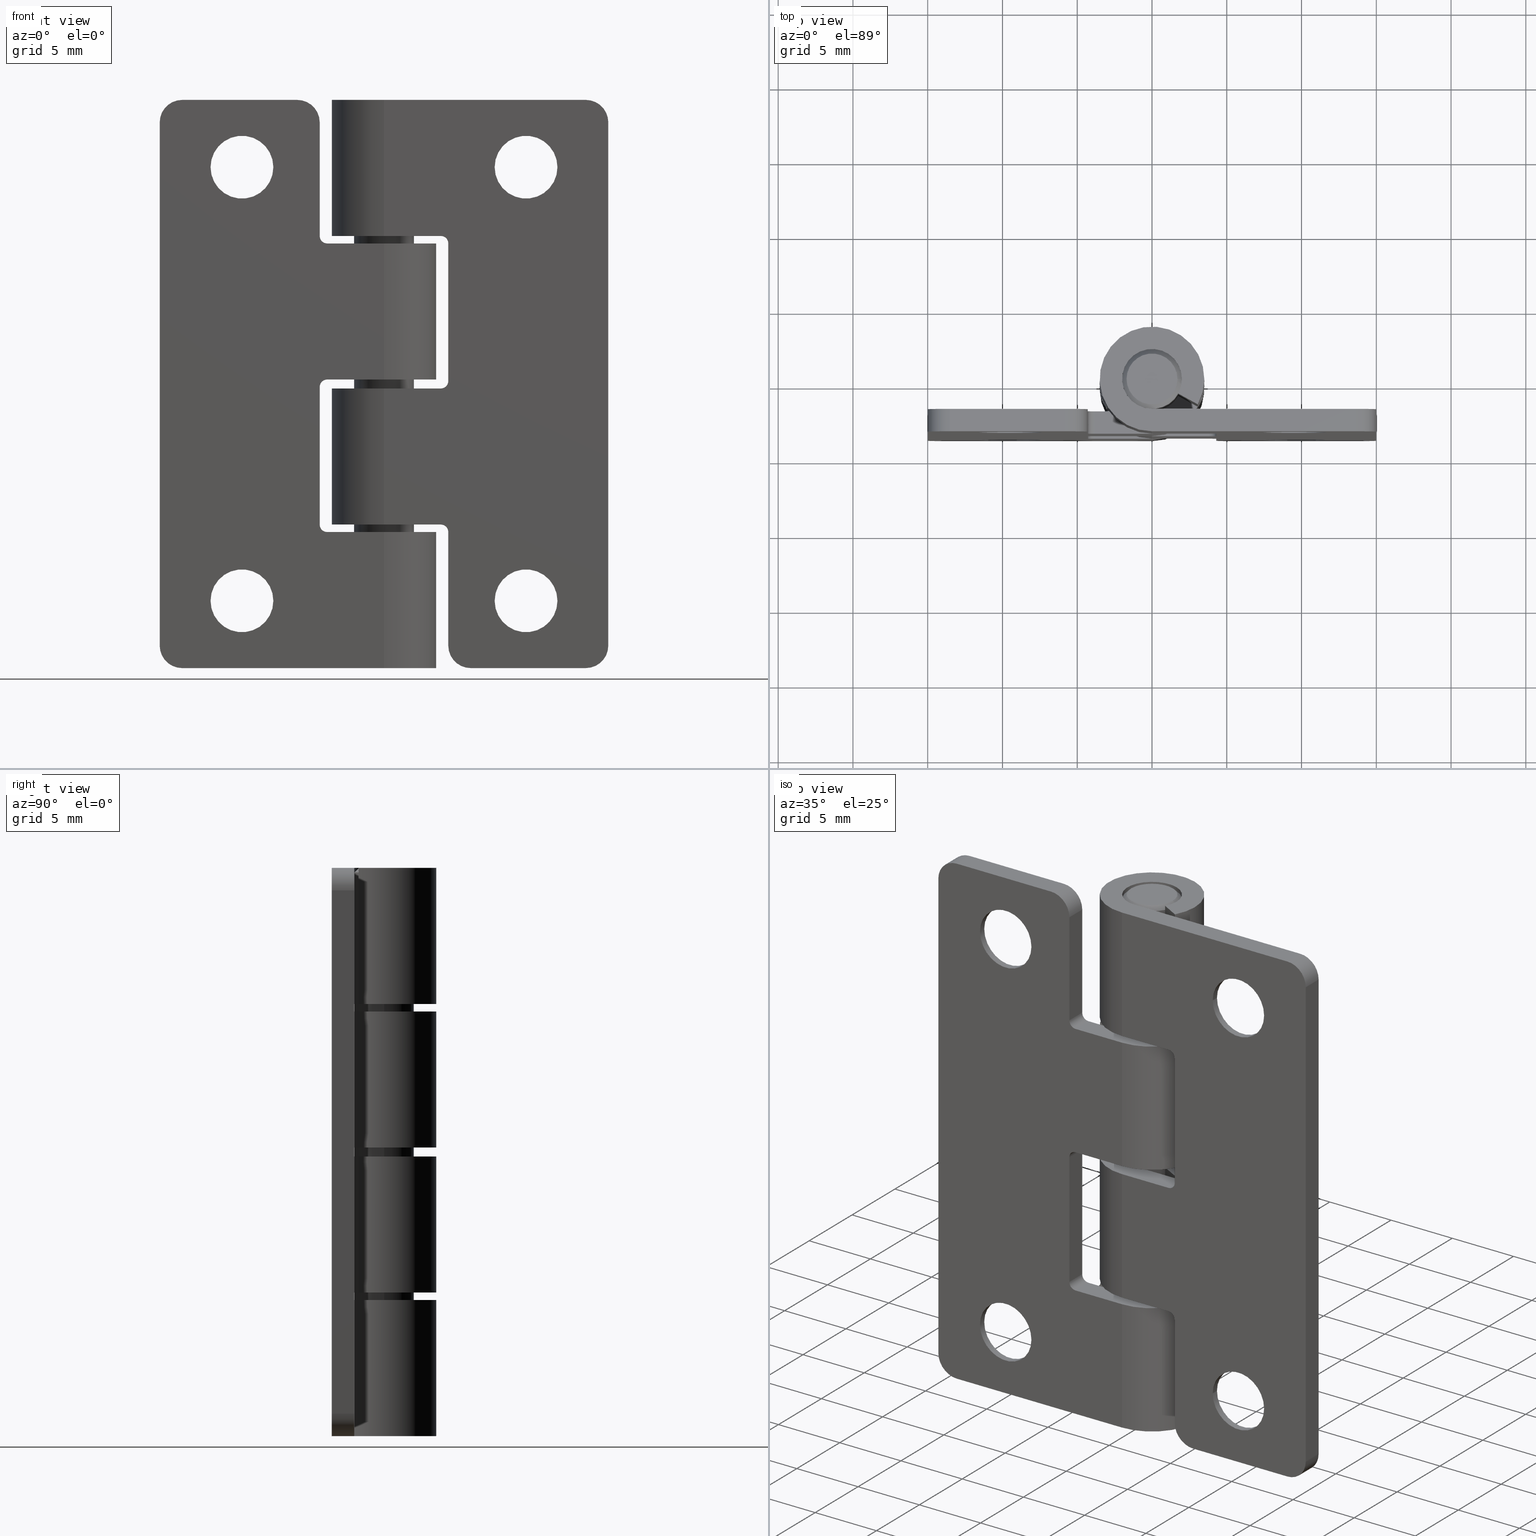
[diagram: canonical four-view strip — front | top / right | iso, engineering-drawing reading convention]
A machine part, canonical four-view strip (front | top / right | iso — engineering-drawing reading convention). The complete STEP part file that produces these views, byte-faithful:
ISO-10303-21;
HEADER;
/* Generated by software containing ST-Developer
 * from STEP Tools, Inc. (www.steptools.com) 
 */

FILE_DESCRIPTION(
/* description */ (''),
/* implementation_level */ '2;1');

FILE_NAME(
/* name */ '\\\\SYNOLOGYNAS\\web\\db2\\H-TC3830-15\\\X2\B3C4BA74\X0\\\
H-TC3830-15.stp',
/* time_stamp */ '2023-02-22T14:49:19+09:00',
/* author */ ('user'),
/* organization */ (''),
/* preprocessor_version */ 'ST-DEVELOPER v15.6',
/* originating_system */ 'Autodesk Inventor 2015',
/* authorisation */ '');

FILE_SCHEMA (('AUTOMOTIVE_DESIGN { 1 0 10303 214 3 1 1 }'));
ENDSEC;

DATA;
#10=MECHANICAL_DESIGN_GEOMETRIC_PRESENTATION_REPRESENTATION('',(#33,#34),
#960);
#11=(
CONVERSION_BASED_UNIT('degree',#12)
NAMED_UNIT(#26)
PLANE_ANGLE_UNIT()
);
#12=PLANE_ANGLE_MEASURE_WITH_UNIT(PLANE_ANGLE_MEASURE(0.01745329252),#963);
#13=ITEM_DEFINED_TRANSFORMATION($,$,#555,#619);
#14=ITEM_DEFINED_TRANSFORMATION($,$,#555,#620);
#15=ITEM_DEFINED_TRANSFORMATION($,$,#608,#621);
#16=(
REPRESENTATION_RELATIONSHIP($,$,#973,#975)
REPRESENTATION_RELATIONSHIP_WITH_TRANSFORMATION(#13)
SHAPE_REPRESENTATION_RELATIONSHIP()
);
#17=(
REPRESENTATION_RELATIONSHIP($,$,#973,#975)
REPRESENTATION_RELATIONSHIP_WITH_TRANSFORMATION(#14)
SHAPE_REPRESENTATION_RELATIONSHIP()
);
#18=(
REPRESENTATION_RELATIONSHIP($,$,#974,#975)
REPRESENTATION_RELATIONSHIP_WITH_TRANSFORMATION(#15)
SHAPE_REPRESENTATION_RELATIONSHIP()
);
#19=CONTEXT_DEPENDENT_SHAPE_REPRESENTATION(#16,#970);
#20=CONTEXT_DEPENDENT_SHAPE_REPRESENTATION(#17,#971);
#21=CONTEXT_DEPENDENT_SHAPE_REPRESENTATION(#18,#972);
#22=NEXT_ASSEMBLY_USAGE_OCCURRENCE('38_\X2\B0A0AC1C\X0\:1',$,$,#979,#977,
$);
#23=NEXT_ASSEMBLY_USAGE_OCCURRENCE('38_\X2\B0A0AC1C\X0\:2',$,$,#979,#977,
$);
#24=NEXT_ASSEMBLY_USAGE_OCCURRENCE('38_\X2\D540\X0\:1',$,$,#979,#978,$);
#25=DIMENSIONAL_EXPONENTS(1.,0.,0.,0.,0.,0.,0.);
#26=DIMENSIONAL_EXPONENTS(0.,0.,0.,0.,0.,0.,0.);
#27=(
CONVERSION_BASED_UNIT('__CONSTANT UNIT inch',#28)
LENGTH_UNIT()
NAMED_UNIT(#25)
);
#28=LENGTH_MEASURE_WITH_UNIT(LENGTH_MEASURE(25.4),#961);
#29=SHAPE_REPRESENTATION_RELATIONSHIP('SRR','None',#973,#31);
#30=SHAPE_REPRESENTATION_RELATIONSHIP('SRR','None',#974,#32);
#31=ADVANCED_BREP_SHAPE_REPRESENTATION($,(#35),#957);
#32=ADVANCED_BREP_SHAPE_REPRESENTATION($,(#36),#958);
#33=STYLED_ITEM('',(#992),#35);
#34=STYLED_ITEM('',(#993),#36);
#35=MANIFOLD_SOLID_BREP('\X2\C194B9ACB4DC\X0\2',#553);
#36=MANIFOLD_SOLID_BREP('\X2\C194B9ACB4DC\X0\3',#554);
#37=CONICAL_SURFACE('',#597,2.6,0.785398163397448);
#38=CONICAL_SURFACE('',#601,2.6,0.785398163397448);
#39=CONICAL_SURFACE('',#609,1.85,0.785398163397448);
#40=CONICAL_SURFACE('',#615,1.85,0.785398163397448);
#41=FACE_BOUND('',#106,.T.);
#42=FACE_BOUND('',#107,.T.);
#43=FACE_BOUND('',#119,.T.);
#44=FACE_BOUND('',#121,.T.);
#45=FACE_BOUND('',#123,.T.);
#46=FACE_BOUND('',#125,.T.);
#47=FACE_BOUND('',#127,.T.);
#48=FACE_BOUND('',#128,.T.);
#49=FACE_BOUND('',#132,.T.);
#50=FACE_BOUND('',#134,.T.);
#51=FACE_BOUND('',#137,.T.);
#52=PLANE('',#559);
#53=PLANE('',#563);
#54=PLANE('',#569);
#55=PLANE('',#575);
#56=PLANE('',#576);
#57=PLANE('',#583);
#58=PLANE('',#586);
#59=PLANE('',#587);
#60=PLANE('',#592);
#61=PLANE('',#593);
#62=PLANE('',#605);
#63=PLANE('',#607);
#64=PLANE('',#614);
#65=PLANE('',#617);
#66=FACE_OUTER_BOUND('',#97,.T.);
#67=FACE_OUTER_BOUND('',#98,.T.);
#68=FACE_OUTER_BOUND('',#99,.T.);
#69=FACE_OUTER_BOUND('',#100,.T.);
#70=FACE_OUTER_BOUND('',#101,.T.);
#71=FACE_OUTER_BOUND('',#102,.T.);
#72=FACE_OUTER_BOUND('',#103,.T.);
#73=FACE_OUTER_BOUND('',#104,.T.);
#74=FACE_OUTER_BOUND('',#105,.T.);
#75=FACE_OUTER_BOUND('',#108,.T.);
#76=FACE_OUTER_BOUND('',#109,.T.);
#77=FACE_OUTER_BOUND('',#110,.T.);
#78=FACE_OUTER_BOUND('',#111,.T.);
#79=FACE_OUTER_BOUND('',#112,.T.);
#80=FACE_OUTER_BOUND('',#113,.T.);
#81=FACE_OUTER_BOUND('',#114,.T.);
#82=FACE_OUTER_BOUND('',#115,.T.);
#83=FACE_OUTER_BOUND('',#116,.T.);
#84=FACE_OUTER_BOUND('',#117,.T.);
#85=FACE_OUTER_BOUND('',#118,.T.);
#86=FACE_OUTER_BOUND('',#120,.T.);
#87=FACE_OUTER_BOUND('',#122,.T.);
#88=FACE_OUTER_BOUND('',#124,.T.);
#89=FACE_OUTER_BOUND('',#126,.T.);
#90=FACE_OUTER_BOUND('',#129,.T.);
#91=FACE_OUTER_BOUND('',#130,.T.);
#92=FACE_OUTER_BOUND('',#131,.T.);
#93=FACE_OUTER_BOUND('',#133,.T.);
#94=FACE_OUTER_BOUND('',#135,.T.);
#95=FACE_OUTER_BOUND('',#136,.T.);
#96=FACE_OUTER_BOUND('',#138,.T.);
#97=EDGE_LOOP('',(#369,#370,#371,#372));
#98=EDGE_LOOP('',(#373,#374,#375,#376));
#99=EDGE_LOOP('',(#377,#378,#379,#380));
#100=EDGE_LOOP('',(#381,#382,#383,#384,#385,#386));
#101=EDGE_LOOP('',(#387,#388,#389,#390));
#102=EDGE_LOOP('',(#391,#392,#393,#394,#395,#396));
#103=EDGE_LOOP('',(#397,#398,#399,#400));
#104=EDGE_LOOP('',(#401,#402,#403,#404));
#105=EDGE_LOOP('',(#405,#406,#407,#408,#409,#410,#411,#412,#413,#414,#415,
#416,#417,#418,#419,#420));
#106=EDGE_LOOP('',(#421));
#107=EDGE_LOOP('',(#422));
#108=EDGE_LOOP('',(#423,#424,#425,#426));
#109=EDGE_LOOP('',(#427,#428,#429,#430));
#110=EDGE_LOOP('',(#431,#432,#433,#434));
#111=EDGE_LOOP('',(#435,#436,#437,#438));
#112=EDGE_LOOP('',(#439,#440,#441,#442,#443,#444));
#113=EDGE_LOOP('',(#445,#446,#447,#448));
#114=EDGE_LOOP('',(#449,#450,#451,#452));
#115=EDGE_LOOP('',(#453,#454,#455,#456));
#116=EDGE_LOOP('',(#457,#458,#459,#460));
#117=EDGE_LOOP('',(#461,#462,#463,#464));
#118=EDGE_LOOP('',(#465));
#119=EDGE_LOOP('',(#466));
#120=EDGE_LOOP('',(#467));
#121=EDGE_LOOP('',(#468));
#122=EDGE_LOOP('',(#469));
#123=EDGE_LOOP('',(#470));
#124=EDGE_LOOP('',(#471));
#125=EDGE_LOOP('',(#472));
#126=EDGE_LOOP('',(#473,#474,#475,#476,#477,#478,#479,#480,#481,#482,#483,
#484,#485,#486,#487,#488));
#127=EDGE_LOOP('',(#489));
#128=EDGE_LOOP('',(#490));
#129=EDGE_LOOP('',(#491,#492,#493,#494));
#130=EDGE_LOOP('',(#495,#496,#497,#498,#499,#500));
#131=EDGE_LOOP('',(#501));
#132=EDGE_LOOP('',(#502));
#133=EDGE_LOOP('',(#503));
#134=EDGE_LOOP('',(#504));
#135=EDGE_LOOP('',(#505));
#136=EDGE_LOOP('',(#506));
#137=EDGE_LOOP('',(#507));
#138=EDGE_LOOP('',(#508));
#139=LINE('',#802,#179);
#140=LINE('',#805,#180);
#141=LINE('',#808,#181);
#142=LINE('',#810,#182);
#143=LINE('',#811,#183);
#144=LINE('',#817,#184);
#145=LINE('',#820,#185);
#146=LINE('',#823,#186);
#147=LINE('',#827,#187);
#148=LINE('',#830,#188);
#149=LINE('',#836,#189);
#150=LINE('',#839,#190);
#151=LINE('',#842,#191);
#152=LINE('',#846,#192);
#153=LINE('',#849,#193);
#154=LINE('',#854,#194);
#155=LINE('',#858,#195);
#156=LINE('',#860,#196);
#157=LINE('',#861,#197);
#158=LINE('',#864,#198);
#159=LINE('',#865,#199);
#160=LINE('',#866,#200);
#161=LINE('',#868,#201);
#162=LINE('',#870,#202);
#163=LINE('',#874,#203);
#164=LINE('',#882,#204);
#165=LINE('',#885,#205);
#166=LINE('',#888,#206);
#167=LINE('',#889,#207);
#168=LINE('',#893,#208);
#169=LINE('',#896,#209);
#170=LINE('',#900,#210);
#171=LINE('',#904,#211);
#172=LINE('',#907,#212);
#173=LINE('',#910,#213);
#174=LINE('',#911,#214);
#175=LINE('',#913,#215);
#176=LINE('',#914,#216);
#177=LINE('',#931,#217);
#178=LINE('',#932,#218);
#179=VECTOR('',#628,1.5);
#180=VECTOR('',#631,1.5);
#181=VECTOR('',#634,7.6);
#182=VECTOR('',#635,1.5);
#183=VECTOR('',#636,7.6);
#184=VECTOR('',#641,1.5);
#185=VECTOR('',#644,1.5);
#186=VECTOR('',#647,3.8);
#187=VECTOR('',#650,1.5);
#188=VECTOR('',#653,3.8);
#189=VECTOR('',#658,1.5);
#190=VECTOR('',#661,1.5);
#191=VECTOR('',#664,3.8);
#192=VECTOR('',#667,1.5);
#193=VECTOR('',#670,3.8);
#194=VECTOR('',#675,1.5);
#195=VECTOR('',#680,7.69999999999999);
#196=VECTOR('',#681,1.5);
#197=VECTOR('',#682,7.69999999999999);
#198=VECTOR('',#685,3.8);
#199=VECTOR('',#686,9.1);
#200=VECTOR('',#687,9.2);
#201=VECTOR('',#688,9.1);
#202=VECTOR('',#689,13.5);
#203=VECTOR('',#692,35.);
#204=VECTOR('',#701,1.5);
#205=VECTOR('',#704,1.5);
#206=VECTOR('',#707,35.);
#207=VECTOR('',#708,1.5);
#208=VECTOR('',#715,9.2);
#209=VECTOR('',#718,3.80000000000001);
#210=VECTOR('',#721,1.5);
#211=VECTOR('',#726,9.1);
#212=VECTOR('',#729,9.1);
#213=VECTOR('',#732,1.5);
#214=VECTOR('',#733,9.1);
#215=VECTOR('',#736,9.1);
#216=VECTOR('',#737,9.1);
#217=VECTOR('',#762,13.5);
#218=VECTOR('',#763,9.1);
#219=CIRCLE('',#557,0.5);
#220=CIRCLE('',#558,0.5);
#221=CIRCLE('',#561,0.5);
#222=CIRCLE('',#562,0.5);
#223=CIRCLE('',#564,3.5);
#224=CIRCLE('',#565,2.);
#225=CIRCLE('',#567,0.5);
#226=CIRCLE('',#568,0.5);
#227=CIRCLE('',#570,2.);
#228=CIRCLE('',#571,3.5);
#229=CIRCLE('',#573,1.5);
#230=CIRCLE('',#574,1.5);
#231=CIRCLE('',#577,1.5);
#232=CIRCLE('',#578,1.5);
#233=CIRCLE('',#579,3.1);
#234=CIRCLE('',#580,3.1);
#235=CIRCLE('',#582,1.5);
#236=CIRCLE('',#585,1.5);
#237=CIRCLE('',#588,3.5);
#238=CIRCLE('',#589,2.);
#239=CIRCLE('',#591,3.5);
#240=CIRCLE('',#595,2.);
#241=CIRCLE('',#598,2.1);
#242=CIRCLE('',#600,2.1);
#243=CIRCLE('',#602,2.1);
#244=CIRCLE('',#604,2.1);
#245=CIRCLE('',#610,2.);
#246=CIRCLE('',#611,1.7);
#247=CIRCLE('',#613,2.);
#248=CIRCLE('',#616,1.7);
#249=VERTEX_POINT('',#798);
#250=VERTEX_POINT('',#799);
#251=VERTEX_POINT('',#801);
#252=VERTEX_POINT('',#803);
#253=VERTEX_POINT('',#807);
#254=VERTEX_POINT('',#809);
#255=VERTEX_POINT('',#813);
#256=VERTEX_POINT('',#814);
#257=VERTEX_POINT('',#816);
#258=VERTEX_POINT('',#818);
#259=VERTEX_POINT('',#822);
#260=VERTEX_POINT('',#824);
#261=VERTEX_POINT('',#826);
#262=VERTEX_POINT('',#828);
#263=VERTEX_POINT('',#832);
#264=VERTEX_POINT('',#833);
#265=VERTEX_POINT('',#835);
#266=VERTEX_POINT('',#837);
#267=VERTEX_POINT('',#841);
#268=VERTEX_POINT('',#843);
#269=VERTEX_POINT('',#845);
#270=VERTEX_POINT('',#847);
#271=VERTEX_POINT('',#851);
#272=VERTEX_POINT('',#853);
#273=VERTEX_POINT('',#857);
#274=VERTEX_POINT('',#859);
#275=VERTEX_POINT('',#863);
#276=VERTEX_POINT('',#867);
#277=VERTEX_POINT('',#869);
#278=VERTEX_POINT('',#871);
#279=VERTEX_POINT('',#873);
#280=VERTEX_POINT('',#876);
#281=VERTEX_POINT('',#878);
#282=VERTEX_POINT('',#881);
#283=VERTEX_POINT('',#883);
#284=VERTEX_POINT('',#887);
#285=VERTEX_POINT('',#895);
#286=VERTEX_POINT('',#897);
#287=VERTEX_POINT('',#899);
#288=VERTEX_POINT('',#903);
#289=VERTEX_POINT('',#905);
#290=VERTEX_POINT('',#909);
#291=VERTEX_POINT('',#919);
#292=VERTEX_POINT('',#922);
#293=VERTEX_POINT('',#925);
#294=VERTEX_POINT('',#928);
#295=VERTEX_POINT('',#937);
#296=VERTEX_POINT('',#939);
#297=VERTEX_POINT('',#942);
#298=VERTEX_POINT('',#946);
#299=EDGE_CURVE('',#249,#250,#219,.T.);
#300=EDGE_CURVE('',#250,#251,#139,.T.);
#301=EDGE_CURVE('',#251,#252,#220,.T.);
#302=EDGE_CURVE('',#252,#249,#140,.T.);
#303=EDGE_CURVE('',#253,#250,#141,.T.);
#304=EDGE_CURVE('',#254,#253,#142,.T.);
#305=EDGE_CURVE('',#251,#254,#143,.T.);
#306=EDGE_CURVE('',#255,#256,#221,.T.);
#307=EDGE_CURVE('',#256,#257,#144,.T.);
#308=EDGE_CURVE('',#257,#258,#222,.T.);
#309=EDGE_CURVE('',#258,#255,#145,.T.);
#310=EDGE_CURVE('',#259,#256,#146,.T.);
#311=EDGE_CURVE('',#260,#259,#223,.T.);
#312=EDGE_CURVE('',#261,#260,#147,.T.);
#313=EDGE_CURVE('',#262,#261,#224,.T.);
#314=EDGE_CURVE('',#257,#262,#148,.T.);
#315=EDGE_CURVE('',#263,#264,#225,.T.);
#316=EDGE_CURVE('',#264,#265,#149,.T.);
#317=EDGE_CURVE('',#265,#266,#226,.T.);
#318=EDGE_CURVE('',#266,#263,#150,.T.);
#319=EDGE_CURVE('',#267,#264,#151,.T.);
#320=EDGE_CURVE('',#268,#267,#227,.T.);
#321=EDGE_CURVE('',#269,#268,#152,.T.);
#322=EDGE_CURVE('',#270,#269,#228,.T.);
#323=EDGE_CURVE('',#265,#270,#153,.T.);
#324=EDGE_CURVE('',#253,#271,#229,.T.);
#325=EDGE_CURVE('',#271,#272,#154,.T.);
#326=EDGE_CURVE('',#272,#254,#230,.T.);
#327=EDGE_CURVE('',#271,#273,#155,.T.);
#328=EDGE_CURVE('',#274,#273,#156,.T.);
#329=EDGE_CURVE('',#274,#272,#157,.T.);
#330=EDGE_CURVE('',#249,#275,#158,.T.);
#331=EDGE_CURVE('',#275,#267,#159,.T.);
#332=EDGE_CURVE('',#263,#258,#160,.T.);
#333=EDGE_CURVE('',#262,#276,#161,.T.);
#334=EDGE_CURVE('',#277,#276,#162,.T.);
#335=EDGE_CURVE('',#278,#277,#231,.T.);
#336=EDGE_CURVE('',#279,#278,#163,.T.);
#337=EDGE_CURVE('',#273,#279,#232,.T.);
#338=EDGE_CURVE('',#280,#280,#233,.T.);
#339=EDGE_CURVE('',#281,#281,#234,.T.);
#340=EDGE_CURVE('',#277,#282,#164,.T.);
#341=EDGE_CURVE('',#282,#283,#235,.T.);
#342=EDGE_CURVE('',#283,#278,#165,.T.);
#343=EDGE_CURVE('',#284,#283,#166,.T.);
#344=EDGE_CURVE('',#279,#284,#167,.T.);
#345=EDGE_CURVE('',#284,#274,#236,.T.);
#346=EDGE_CURVE('',#255,#266,#168,.T.);
#347=EDGE_CURVE('',#285,#252,#169,.T.);
#348=EDGE_CURVE('',#286,#285,#237,.T.);
#349=EDGE_CURVE('',#287,#286,#170,.T.);
#350=EDGE_CURVE('',#275,#287,#238,.T.);
#351=EDGE_CURVE('',#259,#288,#171,.T.);
#352=EDGE_CURVE('',#289,#288,#239,.T.);
#353=EDGE_CURVE('',#289,#260,#172,.T.);
#354=EDGE_CURVE('',#290,#289,#173,.T.);
#355=EDGE_CURVE('',#261,#290,#174,.T.);
#356=EDGE_CURVE('',#287,#268,#175,.T.);
#357=EDGE_CURVE('',#269,#286,#176,.T.);
#358=EDGE_CURVE('',#276,#290,#240,.T.);
#359=EDGE_CURVE('',#291,#291,#241,.T.);
#360=EDGE_CURVE('',#292,#292,#242,.T.);
#361=EDGE_CURVE('',#293,#293,#243,.T.);
#362=EDGE_CURVE('',#294,#294,#244,.T.);
#363=EDGE_CURVE('',#288,#282,#177,.T.);
#364=EDGE_CURVE('',#285,#270,#178,.T.);
#365=EDGE_CURVE('',#295,#295,#245,.T.);
#366=EDGE_CURVE('',#296,#296,#246,.T.);
#367=EDGE_CURVE('',#297,#297,#247,.T.);
#368=EDGE_CURVE('',#298,#298,#248,.T.);
#369=ORIENTED_EDGE('',*,*,#299,.T.);
#370=ORIENTED_EDGE('',*,*,#300,.T.);
#371=ORIENTED_EDGE('',*,*,#301,.T.);
#372=ORIENTED_EDGE('',*,*,#302,.T.);
#373=ORIENTED_EDGE('',*,*,#300,.F.);
#374=ORIENTED_EDGE('',*,*,#303,.F.);
#375=ORIENTED_EDGE('',*,*,#304,.F.);
#376=ORIENTED_EDGE('',*,*,#305,.F.);
#377=ORIENTED_EDGE('',*,*,#306,.T.);
#378=ORIENTED_EDGE('',*,*,#307,.T.);
#379=ORIENTED_EDGE('',*,*,#308,.T.);
#380=ORIENTED_EDGE('',*,*,#309,.T.);
#381=ORIENTED_EDGE('',*,*,#307,.F.);
#382=ORIENTED_EDGE('',*,*,#310,.F.);
#383=ORIENTED_EDGE('',*,*,#311,.F.);
#384=ORIENTED_EDGE('',*,*,#312,.F.);
#385=ORIENTED_EDGE('',*,*,#313,.F.);
#386=ORIENTED_EDGE('',*,*,#314,.F.);
#387=ORIENTED_EDGE('',*,*,#315,.T.);
#388=ORIENTED_EDGE('',*,*,#316,.T.);
#389=ORIENTED_EDGE('',*,*,#317,.T.);
#390=ORIENTED_EDGE('',*,*,#318,.T.);
#391=ORIENTED_EDGE('',*,*,#316,.F.);
#392=ORIENTED_EDGE('',*,*,#319,.F.);
#393=ORIENTED_EDGE('',*,*,#320,.F.);
#394=ORIENTED_EDGE('',*,*,#321,.F.);
#395=ORIENTED_EDGE('',*,*,#322,.F.);
#396=ORIENTED_EDGE('',*,*,#323,.F.);
#397=ORIENTED_EDGE('',*,*,#324,.T.);
#398=ORIENTED_EDGE('',*,*,#325,.T.);
#399=ORIENTED_EDGE('',*,*,#326,.T.);
#400=ORIENTED_EDGE('',*,*,#304,.T.);
#401=ORIENTED_EDGE('',*,*,#325,.F.);
#402=ORIENTED_EDGE('',*,*,#327,.T.);
#403=ORIENTED_EDGE('',*,*,#328,.F.);
#404=ORIENTED_EDGE('',*,*,#329,.T.);
#405=ORIENTED_EDGE('',*,*,#324,.F.);
#406=ORIENTED_EDGE('',*,*,#303,.T.);
#407=ORIENTED_EDGE('',*,*,#299,.F.);
#408=ORIENTED_EDGE('',*,*,#330,.T.);
#409=ORIENTED_EDGE('',*,*,#331,.T.);
#410=ORIENTED_EDGE('',*,*,#319,.T.);
#411=ORIENTED_EDGE('',*,*,#315,.F.);
#412=ORIENTED_EDGE('',*,*,#332,.T.);
#413=ORIENTED_EDGE('',*,*,#308,.F.);
#414=ORIENTED_EDGE('',*,*,#314,.T.);
#415=ORIENTED_EDGE('',*,*,#333,.T.);
#416=ORIENTED_EDGE('',*,*,#334,.F.);
#417=ORIENTED_EDGE('',*,*,#335,.F.);
#418=ORIENTED_EDGE('',*,*,#336,.F.);
#419=ORIENTED_EDGE('',*,*,#337,.F.);
#420=ORIENTED_EDGE('',*,*,#327,.F.);
#421=ORIENTED_EDGE('',*,*,#338,.T.);
#422=ORIENTED_EDGE('',*,*,#339,.T.);
#423=ORIENTED_EDGE('',*,*,#335,.T.);
#424=ORIENTED_EDGE('',*,*,#340,.T.);
#425=ORIENTED_EDGE('',*,*,#341,.T.);
#426=ORIENTED_EDGE('',*,*,#342,.T.);
#427=ORIENTED_EDGE('',*,*,#342,.F.);
#428=ORIENTED_EDGE('',*,*,#343,.F.);
#429=ORIENTED_EDGE('',*,*,#344,.F.);
#430=ORIENTED_EDGE('',*,*,#336,.T.);
#431=ORIENTED_EDGE('',*,*,#345,.T.);
#432=ORIENTED_EDGE('',*,*,#328,.T.);
#433=ORIENTED_EDGE('',*,*,#337,.T.);
#434=ORIENTED_EDGE('',*,*,#344,.T.);
#435=ORIENTED_EDGE('',*,*,#309,.F.);
#436=ORIENTED_EDGE('',*,*,#332,.F.);
#437=ORIENTED_EDGE('',*,*,#318,.F.);
#438=ORIENTED_EDGE('',*,*,#346,.F.);
#439=ORIENTED_EDGE('',*,*,#302,.F.);
#440=ORIENTED_EDGE('',*,*,#347,.F.);
#441=ORIENTED_EDGE('',*,*,#348,.F.);
#442=ORIENTED_EDGE('',*,*,#349,.F.);
#443=ORIENTED_EDGE('',*,*,#350,.F.);
#444=ORIENTED_EDGE('',*,*,#330,.F.);
#445=ORIENTED_EDGE('',*,*,#311,.T.);
#446=ORIENTED_EDGE('',*,*,#351,.T.);
#447=ORIENTED_EDGE('',*,*,#352,.F.);
#448=ORIENTED_EDGE('',*,*,#353,.T.);
#449=ORIENTED_EDGE('',*,*,#312,.T.);
#450=ORIENTED_EDGE('',*,*,#353,.F.);
#451=ORIENTED_EDGE('',*,*,#354,.F.);
#452=ORIENTED_EDGE('',*,*,#355,.F.);
#453=ORIENTED_EDGE('',*,*,#321,.T.);
#454=ORIENTED_EDGE('',*,*,#356,.F.);
#455=ORIENTED_EDGE('',*,*,#349,.T.);
#456=ORIENTED_EDGE('',*,*,#357,.F.);
#457=ORIENTED_EDGE('',*,*,#313,.T.);
#458=ORIENTED_EDGE('',*,*,#355,.T.);
#459=ORIENTED_EDGE('',*,*,#358,.F.);
#460=ORIENTED_EDGE('',*,*,#333,.F.);
#461=ORIENTED_EDGE('',*,*,#320,.T.);
#462=ORIENTED_EDGE('',*,*,#331,.F.);
#463=ORIENTED_EDGE('',*,*,#350,.T.);
#464=ORIENTED_EDGE('',*,*,#356,.T.);
#465=ORIENTED_EDGE('',*,*,#359,.F.);
#466=ORIENTED_EDGE('',*,*,#338,.F.);
#467=ORIENTED_EDGE('',*,*,#360,.F.);
#468=ORIENTED_EDGE('',*,*,#359,.T.);
#469=ORIENTED_EDGE('',*,*,#361,.F.);
#470=ORIENTED_EDGE('',*,*,#339,.F.);
#471=ORIENTED_EDGE('',*,*,#362,.F.);
#472=ORIENTED_EDGE('',*,*,#361,.T.);
#473=ORIENTED_EDGE('',*,*,#326,.F.);
#474=ORIENTED_EDGE('',*,*,#329,.F.);
#475=ORIENTED_EDGE('',*,*,#345,.F.);
#476=ORIENTED_EDGE('',*,*,#343,.T.);
#477=ORIENTED_EDGE('',*,*,#341,.F.);
#478=ORIENTED_EDGE('',*,*,#363,.F.);
#479=ORIENTED_EDGE('',*,*,#351,.F.);
#480=ORIENTED_EDGE('',*,*,#310,.T.);
#481=ORIENTED_EDGE('',*,*,#306,.F.);
#482=ORIENTED_EDGE('',*,*,#346,.T.);
#483=ORIENTED_EDGE('',*,*,#317,.F.);
#484=ORIENTED_EDGE('',*,*,#323,.T.);
#485=ORIENTED_EDGE('',*,*,#364,.F.);
#486=ORIENTED_EDGE('',*,*,#347,.T.);
#487=ORIENTED_EDGE('',*,*,#301,.F.);
#488=ORIENTED_EDGE('',*,*,#305,.T.);
#489=ORIENTED_EDGE('',*,*,#360,.T.);
#490=ORIENTED_EDGE('',*,*,#362,.T.);
#491=ORIENTED_EDGE('',*,*,#322,.T.);
#492=ORIENTED_EDGE('',*,*,#357,.T.);
#493=ORIENTED_EDGE('',*,*,#348,.T.);
#494=ORIENTED_EDGE('',*,*,#364,.T.);
#495=ORIENTED_EDGE('',*,*,#340,.F.);
#496=ORIENTED_EDGE('',*,*,#334,.T.);
#497=ORIENTED_EDGE('',*,*,#358,.T.);
#498=ORIENTED_EDGE('',*,*,#354,.T.);
#499=ORIENTED_EDGE('',*,*,#352,.T.);
#500=ORIENTED_EDGE('',*,*,#363,.T.);
#501=ORIENTED_EDGE('',*,*,#365,.T.);
#502=ORIENTED_EDGE('',*,*,#366,.T.);
#503=ORIENTED_EDGE('',*,*,#365,.F.);
#504=ORIENTED_EDGE('',*,*,#367,.F.);
#505=ORIENTED_EDGE('',*,*,#366,.F.);
#506=ORIENTED_EDGE('',*,*,#367,.T.);
#507=ORIENTED_EDGE('',*,*,#368,.T.);
#508=ORIENTED_EDGE('',*,*,#368,.F.);
#509=CYLINDRICAL_SURFACE('',#556,0.5);
#510=CYLINDRICAL_SURFACE('',#560,0.5);
#511=CYLINDRICAL_SURFACE('',#566,0.5);
#512=CYLINDRICAL_SURFACE('',#572,1.5);
#513=CYLINDRICAL_SURFACE('',#581,1.5);
#514=CYLINDRICAL_SURFACE('',#584,1.5);
#515=CYLINDRICAL_SURFACE('',#590,3.5);
#516=CYLINDRICAL_SURFACE('',#594,2.);
#517=CYLINDRICAL_SURFACE('',#596,2.);
#518=CYLINDRICAL_SURFACE('',#599,2.1);
#519=CYLINDRICAL_SURFACE('',#603,2.1);
#520=CYLINDRICAL_SURFACE('',#606,3.5);
#521=CYLINDRICAL_SURFACE('',#612,2.);
#522=ADVANCED_FACE('',(#66),#509,.F.);
#523=ADVANCED_FACE('',(#67),#52,.F.);
#524=ADVANCED_FACE('',(#68),#510,.F.);
#525=ADVANCED_FACE('',(#69),#53,.F.);
#526=ADVANCED_FACE('',(#70),#511,.F.);
#527=ADVANCED_FACE('',(#71),#54,.F.);
#528=ADVANCED_FACE('',(#72),#512,.T.);
#529=ADVANCED_FACE('',(#73),#55,.F.);
#530=ADVANCED_FACE('',(#74,#41,#42),#56,.T.);
#531=ADVANCED_FACE('',(#75),#513,.T.);
#532=ADVANCED_FACE('',(#76),#57,.T.);
#533=ADVANCED_FACE('',(#77),#514,.T.);
#534=ADVANCED_FACE('',(#78),#58,.F.);
#535=ADVANCED_FACE('',(#79),#59,.F.);
#536=ADVANCED_FACE('',(#80),#515,.T.);
#537=ADVANCED_FACE('',(#81),#60,.T.);
#538=ADVANCED_FACE('',(#82),#61,.T.);
#539=ADVANCED_FACE('',(#83),#516,.F.);
#540=ADVANCED_FACE('',(#84),#517,.F.);
#541=ADVANCED_FACE('',(#85,#43),#37,.F.);
#542=ADVANCED_FACE('',(#86,#44),#518,.F.);
#543=ADVANCED_FACE('',(#87,#45),#38,.F.);
#544=ADVANCED_FACE('',(#88,#46),#519,.F.);
#545=ADVANCED_FACE('',(#89,#47,#48),#62,.T.);
#546=ADVANCED_FACE('',(#90),#520,.T.);
#547=ADVANCED_FACE('',(#91),#63,.T.);
#548=ADVANCED_FACE('',(#92,#49),#39,.T.);
#549=ADVANCED_FACE('',(#93,#50),#521,.T.);
#550=ADVANCED_FACE('',(#94),#64,.F.);
#551=ADVANCED_FACE('',(#95,#51),#40,.T.);
#552=ADVANCED_FACE('',(#96),#65,.T.);
#553=CLOSED_SHELL('',(#522,#523,#524,#525,#526,#527,#528,#529,#530,#531,
#532,#533,#534,#535,#536,#537,#538,#539,#540,#541,#542,#543,#544,#545,#546,
#547));
#554=CLOSED_SHELL('',(#548,#549,#550,#551,#552));
#555=AXIS2_PLACEMENT_3D('placement',#796,#622,#623);
#556=AXIS2_PLACEMENT_3D('',#797,#624,#625);
#557=AXIS2_PLACEMENT_3D('',#800,#626,#627);
#558=AXIS2_PLACEMENT_3D('',#804,#629,#630);
#559=AXIS2_PLACEMENT_3D('',#806,#632,#633);
#560=AXIS2_PLACEMENT_3D('',#812,#637,#638);
#561=AXIS2_PLACEMENT_3D('',#815,#639,#640);
#562=AXIS2_PLACEMENT_3D('',#819,#642,#643);
#563=AXIS2_PLACEMENT_3D('',#821,#645,#646);
#564=AXIS2_PLACEMENT_3D('',#825,#648,#649);
#565=AXIS2_PLACEMENT_3D('',#829,#651,#652);
#566=AXIS2_PLACEMENT_3D('',#831,#654,#655);
#567=AXIS2_PLACEMENT_3D('',#834,#656,#657);
#568=AXIS2_PLACEMENT_3D('',#838,#659,#660);
#569=AXIS2_PLACEMENT_3D('',#840,#662,#663);
#570=AXIS2_PLACEMENT_3D('',#844,#665,#666);
#571=AXIS2_PLACEMENT_3D('',#848,#668,#669);
#572=AXIS2_PLACEMENT_3D('',#850,#671,#672);
#573=AXIS2_PLACEMENT_3D('',#852,#673,#674);
#574=AXIS2_PLACEMENT_3D('',#855,#676,#677);
#575=AXIS2_PLACEMENT_3D('',#856,#678,#679);
#576=AXIS2_PLACEMENT_3D('',#862,#683,#684);
#577=AXIS2_PLACEMENT_3D('',#872,#690,#691);
#578=AXIS2_PLACEMENT_3D('',#875,#693,#694);
#579=AXIS2_PLACEMENT_3D('',#877,#695,#696);
#580=AXIS2_PLACEMENT_3D('',#879,#697,#698);
#581=AXIS2_PLACEMENT_3D('',#880,#699,#700);
#582=AXIS2_PLACEMENT_3D('',#884,#702,#703);
#583=AXIS2_PLACEMENT_3D('',#886,#705,#706);
#584=AXIS2_PLACEMENT_3D('',#890,#709,#710);
#585=AXIS2_PLACEMENT_3D('',#891,#711,#712);
#586=AXIS2_PLACEMENT_3D('',#892,#713,#714);
#587=AXIS2_PLACEMENT_3D('',#894,#716,#717);
#588=AXIS2_PLACEMENT_3D('',#898,#719,#720);
#589=AXIS2_PLACEMENT_3D('',#901,#722,#723);
#590=AXIS2_PLACEMENT_3D('',#902,#724,#725);
#591=AXIS2_PLACEMENT_3D('',#906,#727,#728);
#592=AXIS2_PLACEMENT_3D('',#908,#730,#731);
#593=AXIS2_PLACEMENT_3D('',#912,#734,#735);
#594=AXIS2_PLACEMENT_3D('',#915,#738,#739);
#595=AXIS2_PLACEMENT_3D('',#916,#740,#741);
#596=AXIS2_PLACEMENT_3D('',#917,#742,#743);
#597=AXIS2_PLACEMENT_3D('',#918,#744,#745);
#598=AXIS2_PLACEMENT_3D('',#920,#746,#747);
#599=AXIS2_PLACEMENT_3D('',#921,#748,#749);
#600=AXIS2_PLACEMENT_3D('',#923,#750,#751);
#601=AXIS2_PLACEMENT_3D('',#924,#752,#753);
#602=AXIS2_PLACEMENT_3D('',#926,#754,#755);
#603=AXIS2_PLACEMENT_3D('',#927,#756,#757);
#604=AXIS2_PLACEMENT_3D('',#929,#758,#759);
#605=AXIS2_PLACEMENT_3D('',#930,#760,#761);
#606=AXIS2_PLACEMENT_3D('',#933,#764,#765);
#607=AXIS2_PLACEMENT_3D('',#934,#766,#767);
#608=AXIS2_PLACEMENT_3D('placement',#935,#768,#769);
#609=AXIS2_PLACEMENT_3D('',#936,#770,#771);
#610=AXIS2_PLACEMENT_3D('',#938,#772,#773);
#611=AXIS2_PLACEMENT_3D('',#940,#774,#775);
#612=AXIS2_PLACEMENT_3D('',#941,#776,#777);
#613=AXIS2_PLACEMENT_3D('',#943,#778,#779);
#614=AXIS2_PLACEMENT_3D('',#944,#780,#781);
#615=AXIS2_PLACEMENT_3D('',#945,#782,#783);
#616=AXIS2_PLACEMENT_3D('',#947,#784,#785);
#617=AXIS2_PLACEMENT_3D('',#948,#786,#787);
#618=AXIS2_PLACEMENT_3D('placement',#949,#788,#789);
#619=AXIS2_PLACEMENT_3D('',#950,#790,#791);
#620=AXIS2_PLACEMENT_3D('',#951,#792,#793);
#621=AXIS2_PLACEMENT_3D('',#952,#794,#795);
#622=DIRECTION('axis',(0.,0.,1.));
#623=DIRECTION('refdir',(1.,0.,0.));
#624=DIRECTION('center_axis',(1.05735526154777E-16,-1.,0.));
#625=DIRECTION('ref_axis',(0.707106781186547,7.47663075563703E-17,0.707106781186548));
#626=DIRECTION('center_axis',(-2.40548322002117E-16,1.,0.));
#627=DIRECTION('ref_axis',(0.707106781186547,1.70093349690742E-16,0.707106781186548));
#628=DIRECTION('',(1.05735526154777E-16,-1.,0.));
#629=DIRECTION('center_axis',(1.48029736616688E-16,-1.,0.));
#630=DIRECTION('ref_axis',(0.707106781186547,1.04672830578919E-16,0.707106781186548));
#631=DIRECTION('',(-1.05735526154777E-16,1.,0.));
#632=DIRECTION('center_axis',(1.,1.05735526154777E-16,4.09029535388216E-16));
#633=DIRECTION('ref_axis',(0.,0.,1.));
#634=DIRECTION('',(-4.09029535388216E-16,-9.83913683869409E-32,1.));
#635=DIRECTION('',(-1.05735526154777E-16,1.,0.));
#636=DIRECTION('',(4.09029535388216E-16,6.05485343919636E-32,-1.));
#637=DIRECTION('center_axis',(-1.58603289232165E-16,1.,0.));
#638=DIRECTION('ref_axis',(0.707106781186548,1.12149461334555E-16,0.707106781186548));
#639=DIRECTION('center_axis',(1.48029736616688E-16,-1.,0.));
#640=DIRECTION('ref_axis',(0.707106781186548,1.04672830578919E-16,0.707106781186548));
#641=DIRECTION('',(-1.58603289232165E-16,1.,0.));
#642=DIRECTION('center_axis',(-2.40548322002117E-16,1.,0.));
#643=DIRECTION('ref_axis',(0.707106781186548,1.70093349690742E-16,0.707106781186548));
#644=DIRECTION('',(1.58603289232165E-16,-1.,0.));
#645=DIRECTION('center_axis',(0.,0.,1.));
#646=DIRECTION('ref_axis',(-1.,0.,0.));
#647=DIRECTION('',(1.,1.48029736616688E-16,0.));
#648=DIRECTION('center_axis',(0.,0.,1.));
#649=DIRECTION('ref_axis',(0.87411763090162,-0.485714285714286,0.));
#650=DIRECTION('',(0.87411763090162,-0.485714285714286,0.));
#651=DIRECTION('center_axis',(0.,0.,-1.));
#652=DIRECTION('ref_axis',(-0.87411763090162,0.485714285714286,0.));
#653=DIRECTION('',(-1.,-2.40548322002117E-16,0.));
#654=DIRECTION('center_axis',(1.58603289232165E-16,-1.,0.));
#655=DIRECTION('ref_axis',(0.707106781186548,1.12149461334555E-16,-0.707106781186547));
#656=DIRECTION('center_axis',(-2.40548322002117E-16,1.,0.));
#657=DIRECTION('ref_axis',(0.707106781186548,1.70093349690742E-16,-0.707106781186547));
#658=DIRECTION('',(1.58603289232165E-16,-1.,0.));
#659=DIRECTION('center_axis',(1.48029736616688E-16,-1.,0.));
#660=DIRECTION('ref_axis',(0.707106781186548,1.04672830578919E-16,-0.707106781186547));
#661=DIRECTION('',(-1.58603289232165E-16,1.,0.));
#662=DIRECTION('center_axis',(4.06112035344191E-16,6.44107046023581E-32,
-1.));
#663=DIRECTION('ref_axis',(1.,0.,3.88578058618805E-16));
#664=DIRECTION('',(1.,2.40548322002117E-16,4.06112035344191E-16));
#665=DIRECTION('center_axis',(-4.06112035344191E-16,-6.44107046023581E-32,
1.));
#666=DIRECTION('ref_axis',(-0.87411763090162,0.485714285714286,-3.54989690215699E-16));
#667=DIRECTION('',(-0.87411763090162,0.485714285714286,-3.549896902157E-16));
#668=DIRECTION('center_axis',(4.06112035344191E-16,6.44107046023581E-32,
-1.));
#669=DIRECTION('ref_axis',(0.87411763090162,-0.485714285714286,3.54989690215699E-16));
#670=DIRECTION('',(-1.,-1.48029736616688E-16,-4.06112035344191E-16));
#671=DIRECTION('center_axis',(-1.05735526154777E-16,1.,0.));
#672=DIRECTION('ref_axis',(-0.707106781186547,-7.47663075563703E-17,-0.707106781186548));
#673=DIRECTION('center_axis',(2.40548322002117E-16,-1.,0.));
#674=DIRECTION('ref_axis',(-0.707106781186547,-1.70093349690742E-16,-0.707106781186548));
#675=DIRECTION('',(1.05735526154777E-16,-1.,0.));
#676=DIRECTION('center_axis',(-1.48029736616688E-16,1.,0.));
#677=DIRECTION('ref_axis',(-0.707106781186547,-1.04672830578919E-16,-0.707106781186548));
#678=DIRECTION('center_axis',(0.,0.,1.));
#679=DIRECTION('ref_axis',(1.,0.,0.));
#680=DIRECTION('',(1.,2.40548322002117E-16,0.));
#681=DIRECTION('',(0.,1.,0.));
#682=DIRECTION('',(-1.,-1.48029736616688E-16,0.));
#683=DIRECTION('center_axis',(-2.40548322002117E-16,1.,0.));
#684=DIRECTION('ref_axis',(-1.,-4.44089209850063E-16,0.));
#685=DIRECTION('',(-1.,-2.40548322002117E-16,-8.12224070688383E-16));
#686=DIRECTION('',(0.,0.,1.));
#687=DIRECTION('',(-4.09029535388216E-16,-9.83913683869409E-32,1.));
#688=DIRECTION('',(0.,0.,1.));
#689=DIRECTION('',(-1.,-2.40548322002117E-16,0.));
#690=DIRECTION('center_axis',(2.40548322002117E-16,-1.,0.));
#691=DIRECTION('ref_axis',(0.707106781186546,1.70093349690742E-16,0.707106781186549));
#692=DIRECTION('',(0.,0.,1.));
#693=DIRECTION('center_axis',(2.40548322002117E-16,-1.,0.));
#694=DIRECTION('ref_axis',(0.707106781186546,1.70093349690742E-16,-0.707106781186549));
#695=DIRECTION('center_axis',(2.40548322002117E-16,-1.,0.));
#696=DIRECTION('ref_axis',(1.,2.40548322002117E-16,0.));
#697=DIRECTION('center_axis',(2.40548322002117E-16,-1.,0.));
#698=DIRECTION('ref_axis',(1.,2.40548322002117E-16,0.));
#699=DIRECTION('center_axis',(0.,1.,0.));
#700=DIRECTION('ref_axis',(0.707106781186546,0.,0.707106781186549));
#701=DIRECTION('',(0.,-1.,0.));
#702=DIRECTION('center_axis',(-1.48029736616688E-16,1.,0.));
#703=DIRECTION('ref_axis',(0.707106781186546,1.04672830578918E-16,0.707106781186549));
#704=DIRECTION('',(0.,1.,0.));
#705=DIRECTION('center_axis',(1.,0.,0.));
#706=DIRECTION('ref_axis',(0.,1.,0.));
#707=DIRECTION('',(0.,0.,1.));
#708=DIRECTION('',(0.,-1.,0.));
#709=DIRECTION('center_axis',(0.,-1.,0.));
#710=DIRECTION('ref_axis',(0.707106781186546,0.,-0.707106781186549));
#711=DIRECTION('center_axis',(-1.48029736616688E-16,1.,0.));
#712=DIRECTION('ref_axis',(0.707106781186546,1.04672830578918E-16,-0.707106781186549));
#713=DIRECTION('center_axis',(1.,1.58603289232165E-16,4.09029535388216E-16));
#714=DIRECTION('ref_axis',(0.,0.,1.));
#715=DIRECTION('',(4.09029535388216E-16,6.05485343919636E-32,-1.));
#716=DIRECTION('center_axis',(-8.12224070688383E-16,-8.58809394698107E-32,
1.));
#717=DIRECTION('ref_axis',(-1.,0.,0.));
#718=DIRECTION('',(1.,1.48029736616688E-16,8.12224070688383E-16));
#719=DIRECTION('center_axis',(-8.12224070688383E-16,-8.58809394698107E-32,
1.));
#720=DIRECTION('ref_axis',(0.87411763090162,-0.485714285714286,7.09979380431399E-16));
#721=DIRECTION('',(0.87411763090162,-0.485714285714286,7.09979380431399E-16));
#722=DIRECTION('center_axis',(8.12224070688383E-16,8.58809394698107E-32,
-1.));
#723=DIRECTION('ref_axis',(-0.87411763090162,0.485714285714286,-7.09979380431399E-16));
#724=DIRECTION('center_axis',(0.,0.,1.));
#725=DIRECTION('ref_axis',(-0.50709255283711,0.861891607371335,0.));
#726=DIRECTION('',(0.,0.,1.));
#727=DIRECTION('center_axis',(0.,0.,1.));
#728=DIRECTION('ref_axis',(0.87411763090162,-0.485714285714286,0.));
#729=DIRECTION('',(0.,0.,-1.));
#730=DIRECTION('center_axis',(-0.485714285714286,-0.87411763090162,0.));
#731=DIRECTION('ref_axis',(0.87411763090162,-0.485714285714286,0.));
#732=DIRECTION('',(0.87411763090162,-0.485714285714286,0.));
#733=DIRECTION('',(0.,0.,1.));
#734=DIRECTION('center_axis',(-0.485714285714286,-0.87411763090162,0.));
#735=DIRECTION('ref_axis',(0.87411763090162,-0.485714285714286,0.));
#736=DIRECTION('',(0.,0.,1.));
#737=DIRECTION('',(0.,0.,-1.));
#738=DIRECTION('center_axis',(0.,0.,1.));
#739=DIRECTION('ref_axis',(-0.87411763090162,0.485714285714286,0.));
#740=DIRECTION('center_axis',(0.,0.,-1.));
#741=DIRECTION('ref_axis',(-0.87411763090162,0.485714285714286,0.));
#742=DIRECTION('center_axis',(0.,0.,1.));
#743=DIRECTION('ref_axis',(-0.87411763090162,0.485714285714286,0.));
#744=DIRECTION('center_axis',(-2.40548322002117E-16,1.,0.));
#745=DIRECTION('ref_axis',(1.,2.40548322002117E-16,0.));
#746=DIRECTION('center_axis',(-2.40548322002117E-16,1.,0.));
#747=DIRECTION('ref_axis',(1.,2.40548322002117E-16,0.));
#748=DIRECTION('center_axis',(-2.40548322002117E-16,1.,0.));
#749=DIRECTION('ref_axis',(1.,2.40548322002117E-16,0.));
#750=DIRECTION('center_axis',(-1.48029736616688E-16,1.,0.));
#751=DIRECTION('ref_axis',(1.,1.48029736616688E-16,0.));
#752=DIRECTION('center_axis',(-2.40548322002117E-16,1.,0.));
#753=DIRECTION('ref_axis',(1.,2.40548322002117E-16,0.));
#754=DIRECTION('center_axis',(-2.40548322002117E-16,1.,0.));
#755=DIRECTION('ref_axis',(1.,2.40548322002117E-16,0.));
#756=DIRECTION('center_axis',(-2.40548322002117E-16,1.,0.));
#757=DIRECTION('ref_axis',(1.,2.40548322002117E-16,0.));
#758=DIRECTION('center_axis',(-1.48029736616688E-16,1.,0.));
#759=DIRECTION('ref_axis',(1.,1.48029736616688E-16,0.));
#760=DIRECTION('center_axis',(1.48029736616688E-16,-1.,0.));
#761=DIRECTION('ref_axis',(1.,0.,0.));
#762=DIRECTION('',(1.,1.48029736616688E-16,0.));
#763=DIRECTION('',(0.,0.,1.));
#764=DIRECTION('center_axis',(0.,0.,1.));
#765=DIRECTION('ref_axis',(-0.50709255283711,0.861891607371335,0.));
#766=DIRECTION('center_axis',(0.,0.,1.));
#767=DIRECTION('ref_axis',(1.,0.,0.));
#768=DIRECTION('axis',(0.,0.,1.));
#769=DIRECTION('refdir',(1.,0.,0.));
#770=DIRECTION('center_axis',(0.,0.,1.));
#771=DIRECTION('ref_axis',(-1.,0.,0.));
#772=DIRECTION('center_axis',(0.,0.,-1.));
#773=DIRECTION('ref_axis',(-1.,0.,0.));
#774=DIRECTION('center_axis',(0.,0.,1.));
#775=DIRECTION('ref_axis',(-1.,0.,0.));
#776=DIRECTION('center_axis',(0.,0.,1.));
#777=DIRECTION('ref_axis',(1.,0.,0.));
#778=DIRECTION('center_axis',(0.,0.,1.));
#779=DIRECTION('ref_axis',(-1.,0.,0.));
#780=DIRECTION('center_axis',(0.,0.,1.));
#781=DIRECTION('ref_axis',(1.,0.,0.));
#782=DIRECTION('center_axis',(0.,0.,-1.));
#783=DIRECTION('ref_axis',(-1.,0.,0.));
#784=DIRECTION('center_axis',(0.,0.,-1.));
#785=DIRECTION('ref_axis',(-1.,0.,0.));
#786=DIRECTION('center_axis',(0.,0.,1.));
#787=DIRECTION('ref_axis',(1.,0.,0.));
#788=DIRECTION('axis',(0.,0.,1.));
#789=DIRECTION('refdir',(1.,0.,0.));
#790=DIRECTION('',(0.,0.,1.));
#791=DIRECTION('',(1.,0.,0.));
#792=DIRECTION('',(0.,0.,-1.));
#793=DIRECTION('',(-1.,-4.44089209850063E-16,0.));
#794=DIRECTION('',(0.,0.,1.));
#795=DIRECTION('',(1.,0.,0.));
#796=CARTESIAN_POINT('',(0.,0.,0.));
#797=CARTESIAN_POINT('Origin',(3.80000000000001,-3.5,-9.9));
#798=CARTESIAN_POINT('',(3.8,-2.,-9.4));
#799=CARTESIAN_POINT('',(4.30000000000001,-2.,-9.9));
#800=CARTESIAN_POINT('Origin',(3.80000000000001,-2.,-9.9));
#801=CARTESIAN_POINT('',(4.30000000000001,-3.5,-9.9));
#802=CARTESIAN_POINT('',(4.30000000000001,-3.5,-9.9));
#803=CARTESIAN_POINT('',(3.80000000000001,-3.5,-9.4));
#804=CARTESIAN_POINT('Origin',(3.80000000000001,-3.5,-9.9));
#805=CARTESIAN_POINT('',(3.80000000000001,-3.5,-9.4));
#806=CARTESIAN_POINT('Origin',(4.30000000000001,-3.5,-19.));
#807=CARTESIAN_POINT('',(4.30000000000001,-2.,-17.5));
#808=CARTESIAN_POINT('',(4.30000000000001,-2.,-9.5));
#809=CARTESIAN_POINT('',(4.30000000000001,-3.5,-17.5));
#810=CARTESIAN_POINT('',(4.30000000000001,-1.75,-17.5));
#811=CARTESIAN_POINT('',(4.30000000000001,-3.5,-9.5));
#812=CARTESIAN_POINT('Origin',(3.8,-3.5,9.4));
#813=CARTESIAN_POINT('',(4.3,-3.5,9.4));
#814=CARTESIAN_POINT('',(3.8,-3.5,9.9));
#815=CARTESIAN_POINT('Origin',(3.8,-3.5,9.4));
#816=CARTESIAN_POINT('',(3.8,-2.,9.9));
#817=CARTESIAN_POINT('',(3.8,-3.5,9.9));
#818=CARTESIAN_POINT('',(4.3,-2.,9.4));
#819=CARTESIAN_POINT('Origin',(3.8,-2.,9.4));
#820=CARTESIAN_POINT('',(4.3,-3.5,9.4));
#821=CARTESIAN_POINT('Origin',(4.3,-3.5,9.9));
#822=CARTESIAN_POINT('',(4.28626379701574E-16,-3.5,9.9));
#823=CARTESIAN_POINT('',(2.15,-3.5,9.9));
#824=CARTESIAN_POINT('',(3.05941170815567,-1.7,9.9));
#825=CARTESIAN_POINT('Origin',(0.,0.,9.9));
#826=CARTESIAN_POINT('',(1.74823526180324,-0.971428571428572,9.9));
#827=CARTESIAN_POINT('',(3.25989312737208,-1.81139998312726,9.9));
#828=CARTESIAN_POINT('',(4.89858719658941E-16,-2.,9.9));
#829=CARTESIAN_POINT('Origin',(0.,0.,9.9));
#830=CARTESIAN_POINT('',(9.65,-2.,9.9));
#831=CARTESIAN_POINT('Origin',(3.8,-3.5,0.200000000000002));
#832=CARTESIAN_POINT('',(4.3,-2.,0.200000000000002));
#833=CARTESIAN_POINT('',(3.8,-2.,-0.299999999999998));
#834=CARTESIAN_POINT('Origin',(3.8,-2.,0.200000000000002));
#835=CARTESIAN_POINT('',(3.8,-3.5,-0.299999999999998));
#836=CARTESIAN_POINT('',(3.8,-3.5,-0.299999999999998));
#837=CARTESIAN_POINT('',(4.3,-3.5,0.200000000000002));
#838=CARTESIAN_POINT('Origin',(3.8,-3.5,0.200000000000002));
#839=CARTESIAN_POINT('',(4.3,-3.5,0.200000000000002));
#840=CARTESIAN_POINT('Origin',(-6.63514033568802,-3.5,-0.300000000000002));
#841=CARTESIAN_POINT('',(4.89858719658941E-16,-2.,-0.3));
#842=CARTESIAN_POINT('',(4.18242983215599,-2.,-0.299999999999998));
#843=CARTESIAN_POINT('',(1.74823526180324,-0.971428571428572,-0.299999999999999));
#844=CARTESIAN_POINT('Origin',(0.,0.,-0.300000000000002));
#845=CARTESIAN_POINT('',(3.05941170815567,-1.7,-0.299999999999999));
#846=CARTESIAN_POINT('',(-0.917776813119344,0.50997405094048,-0.3));
#847=CARTESIAN_POINT('',(4.28626379701574E-16,-3.5,-0.3));
#848=CARTESIAN_POINT('Origin',(0.,0.,-0.300000000000002));
#849=CARTESIAN_POINT('',(-3.31757016784401,-3.5,-0.300000000000001));
#850=CARTESIAN_POINT('Origin',(5.80000000000001,-1.75,-17.5));
#851=CARTESIAN_POINT('',(5.80000000000001,-2.,-19.));
#852=CARTESIAN_POINT('Origin',(5.80000000000001,-2.,-17.5));
#853=CARTESIAN_POINT('',(5.80000000000001,-3.5,-19.));
#854=CARTESIAN_POINT('',(5.80000000000001,-1.75,-19.));
#855=CARTESIAN_POINT('Origin',(5.80000000000001,-3.5,-17.5));
#856=CARTESIAN_POINT('Origin',(5.75,0.,-19.));
#857=CARTESIAN_POINT('',(13.5,-2.,-19.));
#858=CARTESIAN_POINT('',(15.,-2.,-19.));
#859=CARTESIAN_POINT('',(13.5,-3.5,-19.));
#860=CARTESIAN_POINT('',(13.5,-1.75,-19.));
#861=CARTESIAN_POINT('',(0.,-3.5,-19.));
#862=CARTESIAN_POINT('Origin',(15.,-2.,0.));
#863=CARTESIAN_POINT('',(4.89858719658941E-16,-2.,-9.4));
#864=CARTESIAN_POINT('',(9.65000000000001,-2.,-9.39999999999999));
#865=CARTESIAN_POINT('',(4.89858719658941E-16,-2.,0.));
#866=CARTESIAN_POINT('',(4.3,-2.,-0.150000000000001));
#867=CARTESIAN_POINT('',(5.55111512312578E-16,-2.,19.));
#868=CARTESIAN_POINT('',(4.89858719658941E-16,-2.,0.));
#869=CARTESIAN_POINT('',(13.5,-2.,19.));
#870=CARTESIAN_POINT('',(15.,-2.,19.));
#871=CARTESIAN_POINT('',(15.,-2.,17.5));
#872=CARTESIAN_POINT('Origin',(13.5,-2.,17.5));
#873=CARTESIAN_POINT('',(15.,-2.,-17.5));
#874=CARTESIAN_POINT('',(15.,-2.,0.));
#875=CARTESIAN_POINT('Origin',(13.5,-2.,-17.5));
#876=CARTESIAN_POINT('',(6.4,-2.,-14.5));
#877=CARTESIAN_POINT('Origin',(9.5,-2.,-14.5));
#878=CARTESIAN_POINT('',(6.4,-2.,14.5));
#879=CARTESIAN_POINT('Origin',(9.5,-2.,14.5));
#880=CARTESIAN_POINT('Origin',(13.5,-1.75,17.5));
#881=CARTESIAN_POINT('',(13.5,-3.5,19.));
#882=CARTESIAN_POINT('',(13.5,-1.75,19.));
#883=CARTESIAN_POINT('',(15.,-3.5,17.5));
#884=CARTESIAN_POINT('Origin',(13.5,-3.5,17.5));
#885=CARTESIAN_POINT('',(15.,-1.75,17.5));
#886=CARTESIAN_POINT('Origin',(15.,-3.5,0.));
#887=CARTESIAN_POINT('',(15.,-3.5,-17.5));
#888=CARTESIAN_POINT('',(15.,-3.5,0.));
#889=CARTESIAN_POINT('',(15.,-1.75,-17.5));
#890=CARTESIAN_POINT('Origin',(13.5,-1.75,-17.5));
#891=CARTESIAN_POINT('Origin',(13.5,-3.5,-17.5));
#892=CARTESIAN_POINT('Origin',(4.3,-3.5,-0.299999999999998));
#893=CARTESIAN_POINT('',(4.3,-3.5,-0.149999999999998));
#894=CARTESIAN_POINT('Origin',(4.30000000000001,-3.5,-9.4));
#895=CARTESIAN_POINT('',(4.28626379701574E-16,-3.5,-9.4));
#896=CARTESIAN_POINT('',(2.15000000000001,-3.5,-9.4));
#897=CARTESIAN_POINT('',(3.05941170815567,-1.7,-9.4));
#898=CARTESIAN_POINT('Origin',(0.,0.,-9.4));
#899=CARTESIAN_POINT('',(1.74823526180324,-0.971428571428572,-9.4));
#900=CARTESIAN_POINT('',(3.25989312737209,-1.81139998312727,-9.4));
#901=CARTESIAN_POINT('Origin',(0.,0.,-9.4));
#902=CARTESIAN_POINT('Origin',(0.,0.,0.));
#903=CARTESIAN_POINT('',(5.55111512312578E-16,-3.5,19.));
#904=CARTESIAN_POINT('',(4.28626379701574E-16,-3.5,0.));
#905=CARTESIAN_POINT('',(3.05941170815567,-1.7,19.));
#906=CARTESIAN_POINT('Origin',(0.,0.,19.));
#907=CARTESIAN_POINT('',(3.05941170815567,-1.7,0.));
#908=CARTESIAN_POINT('Origin',(1.74823526180324,-0.971428571428572,0.));
#909=CARTESIAN_POINT('',(1.74823526180324,-0.971428571428572,19.));
#910=CARTESIAN_POINT('',(1.74823526180324,-0.971428571428572,19.));
#911=CARTESIAN_POINT('',(1.74823526180324,-0.971428571428572,0.));
#912=CARTESIAN_POINT('Origin',(1.74823526180324,-0.971428571428572,0.));
#913=CARTESIAN_POINT('',(1.74823526180324,-0.971428571428572,0.));
#914=CARTESIAN_POINT('',(3.05941170815567,-1.7,0.));
#915=CARTESIAN_POINT('Origin',(0.,0.,0.));
#916=CARTESIAN_POINT('Origin',(0.,0.,19.));
#917=CARTESIAN_POINT('Origin',(0.,0.,0.));
#918=CARTESIAN_POINT('Origin',(9.5,-2.5,-14.5));
#919=CARTESIAN_POINT('',(7.4,-3.,-14.5));
#920=CARTESIAN_POINT('Origin',(9.5,-2.99999999999999,-14.5));
#921=CARTESIAN_POINT('Origin',(9.50000000000001,-44.839817926784,-14.5));
#922=CARTESIAN_POINT('',(7.4,-3.5,-14.5));
#923=CARTESIAN_POINT('Origin',(9.5,-3.5,-14.5));
#924=CARTESIAN_POINT('Origin',(9.5,-2.5,14.5));
#925=CARTESIAN_POINT('',(7.4,-3.,14.5));
#926=CARTESIAN_POINT('Origin',(9.5,-2.99999999999999,14.5));
#927=CARTESIAN_POINT('Origin',(9.50000000000001,-44.839817926784,14.5));
#928=CARTESIAN_POINT('',(7.4,-3.5,14.5));
#929=CARTESIAN_POINT('Origin',(9.5,-3.5,14.5));
#930=CARTESIAN_POINT('Origin',(4.28626379701574E-16,-3.5,0.));
#931=CARTESIAN_POINT('',(0.,-3.5,19.));
#932=CARTESIAN_POINT('',(4.28626379701574E-16,-3.5,0.));
#933=CARTESIAN_POINT('Origin',(0.,0.,0.));
#934=CARTESIAN_POINT('Origin',(5.75,0.,19.));
#935=CARTESIAN_POINT('',(0.,0.,0.));
#936=CARTESIAN_POINT('Origin',(0.,0.,-18.85));
#937=CARTESIAN_POINT('',(-2.,-2.44929359829471E-16,-18.7));
#938=CARTESIAN_POINT('Origin',(0.,0.,-18.7));
#939=CARTESIAN_POINT('',(1.7,2.0818995585505E-16,-19.));
#940=CARTESIAN_POINT('Origin',(0.,0.,-19.));
#941=CARTESIAN_POINT('Origin',(0.,0.,0.));
#942=CARTESIAN_POINT('',(2.,2.44929359829471E-16,18.7));
#943=CARTESIAN_POINT('Origin',(0.,0.,18.7));
#944=CARTESIAN_POINT('Origin',(0.,0.,-19.));
#945=CARTESIAN_POINT('Origin',(0.,0.,18.85));
#946=CARTESIAN_POINT('',(1.7,-2.0818995585505E-16,19.));
#947=CARTESIAN_POINT('Origin',(0.,0.,19.));
#948=CARTESIAN_POINT('Origin',(0.,0.,19.));
#949=CARTESIAN_POINT('',(0.,0.,0.));
#950=CARTESIAN_POINT('',(0.,0.,0.));
#951=CARTESIAN_POINT('',(0.,0.,0.));
#952=CARTESIAN_POINT('',(0.,0.,0.));
#953=UNCERTAINTY_MEASURE_WITH_UNIT(LENGTH_MEASURE(0.01),#961,
'DISTANCE_ACCURACY_VALUE',
'Maximum model space distance between geometric entities at asserted c
onnectivities');
#954=UNCERTAINTY_MEASURE_WITH_UNIT(LENGTH_MEASURE(0.01),#961,
'DISTANCE_ACCURACY_VALUE',
'Maximum model space distance between geometric entities at asserted c
onnectivities');
#955=UNCERTAINTY_MEASURE_WITH_UNIT(LENGTH_MEASURE(0.000393700787401575),
#27,'DISTANCE_ACCURACY_VALUE',
'Maximum model space distance between geometric entities at asserted c
onnectivities');
#956=UNCERTAINTY_MEASURE_WITH_UNIT(LENGTH_MEASURE(1.E-6),#961,
'DISTANCE_ACCURACY_VALUE',
'Maximum model space distance between geometric entities at asserted c
onnectivities');
#957=(
GEOMETRIC_REPRESENTATION_CONTEXT(3)
GLOBAL_UNCERTAINTY_ASSIGNED_CONTEXT((#953))
GLOBAL_UNIT_ASSIGNED_CONTEXT((#961,#963,#962))
REPRESENTATION_CONTEXT('','3D')
);
#958=(
GEOMETRIC_REPRESENTATION_CONTEXT(3)
GLOBAL_UNCERTAINTY_ASSIGNED_CONTEXT((#954))
GLOBAL_UNIT_ASSIGNED_CONTEXT((#961,#963,#962))
REPRESENTATION_CONTEXT('','3D')
);
#959=(
GEOMETRIC_REPRESENTATION_CONTEXT(3)
GLOBAL_UNCERTAINTY_ASSIGNED_CONTEXT((#955))
GLOBAL_UNIT_ASSIGNED_CONTEXT((#27,#963,#962))
REPRESENTATION_CONTEXT('','3D')
);
#960=(
GEOMETRIC_REPRESENTATION_CONTEXT(3)
GLOBAL_UNCERTAINTY_ASSIGNED_CONTEXT((#956))
GLOBAL_UNIT_ASSIGNED_CONTEXT((#961,#11,#962))
REPRESENTATION_CONTEXT('','3D')
);
#961=(
LENGTH_UNIT()
NAMED_UNIT(*)
SI_UNIT(.MILLI.,.METRE.)
);
#962=(
NAMED_UNIT(*)
SI_UNIT($,.STERADIAN.)
SOLID_ANGLE_UNIT()
);
#963=(
NAMED_UNIT(*)
PLANE_ANGLE_UNIT()
SI_UNIT($,.RADIAN.)
);
#964=SHAPE_DEFINITION_REPRESENTATION(#967,#973);
#965=SHAPE_DEFINITION_REPRESENTATION(#968,#974);
#966=SHAPE_DEFINITION_REPRESENTATION(#969,#975);
#967=PRODUCT_DEFINITION_SHAPE('',$,#977);
#968=PRODUCT_DEFINITION_SHAPE('',$,#978);
#969=PRODUCT_DEFINITION_SHAPE('',$,#979);
#970=PRODUCT_DEFINITION_SHAPE($,$,#22);
#971=PRODUCT_DEFINITION_SHAPE($,$,#23);
#972=PRODUCT_DEFINITION_SHAPE($,$,#24);
#973=SHAPE_REPRESENTATION('',(#555),#957);
#974=SHAPE_REPRESENTATION('',(#608),#958);
#975=SHAPE_REPRESENTATION('',(#618,#619,#620,#621),#959);
#976=PRODUCT_DEFINITION_CONTEXT('part definition',#987,'design');
#977=PRODUCT_DEFINITION('38_\X2\B0A0AC1C\X0\','38_\X2\B0A0AC1C\X0\',#980,
#976);
#978=PRODUCT_DEFINITION('38_\X2\D540\X0\','38_\X2\D540\X0\',#981,#976);
#979=PRODUCT_DEFINITION('H-TC3830-15','H-TC3830-15',#982,#976);
#980=PRODUCT_DEFINITION_FORMATION('',$,#989);
#981=PRODUCT_DEFINITION_FORMATION('',$,#990);
#982=PRODUCT_DEFINITION_FORMATION('',$,#991);
#983=PRODUCT_RELATED_PRODUCT_CATEGORY('38_\X2\B0A0AC1C\X0\','38_\X2\B0A0
AC1C\X0\',(#989));
#984=PRODUCT_RELATED_PRODUCT_CATEGORY('38_\X2\D540\X0\','38_\X2\D540\X0\',
(#990));
#985=PRODUCT_RELATED_PRODUCT_CATEGORY('H-TC3830-15','H-TC3830-15',(#991));
#986=APPLICATION_PROTOCOL_DEFINITION('international standard',
'automotive_design',2009,#987);
#987=APPLICATION_CONTEXT(
'Core Data for Automotive Mechanical Design Process');
#988=PRODUCT_CONTEXT('part definition',#987,'mechanical');
#989=PRODUCT('38_\X2\B0A0AC1C\X0\','38_\X2\B0A0AC1C\X0\',$,(#988));
#990=PRODUCT('38_\X2\D540\X0\','38_\X2\D540\X0\',$,(#988));
#991=PRODUCT('H-TC3830-15','H-TC3830-15',$,(#988));
#992=PRESENTATION_STYLE_ASSIGNMENT((#994));
#993=PRESENTATION_STYLE_ASSIGNMENT((#995));
#994=SURFACE_STYLE_USAGE(.BOTH.,#996);
#995=SURFACE_STYLE_USAGE(.BOTH.,#997);
#996=SURFACE_SIDE_STYLE($,(#998));
#997=SURFACE_SIDE_STYLE($,(#999));
#998=SURFACE_STYLE_FILL_AREA(#1000);
#999=SURFACE_STYLE_FILL_AREA(#1001);
#1000=FILL_AREA_STYLE($,(#1002));
#1001=FILL_AREA_STYLE($,(#1003));
#1002=FILL_AREA_STYLE_COLOUR($,#1004);
#1003=FILL_AREA_STYLE_COLOUR($,#1005);
#1004=COLOUR_RGB('',1.,1.,1.);
#1005=COLOUR_RGB('',1.,1.,1.);
ENDSEC;
END-ISO-10303-21;
